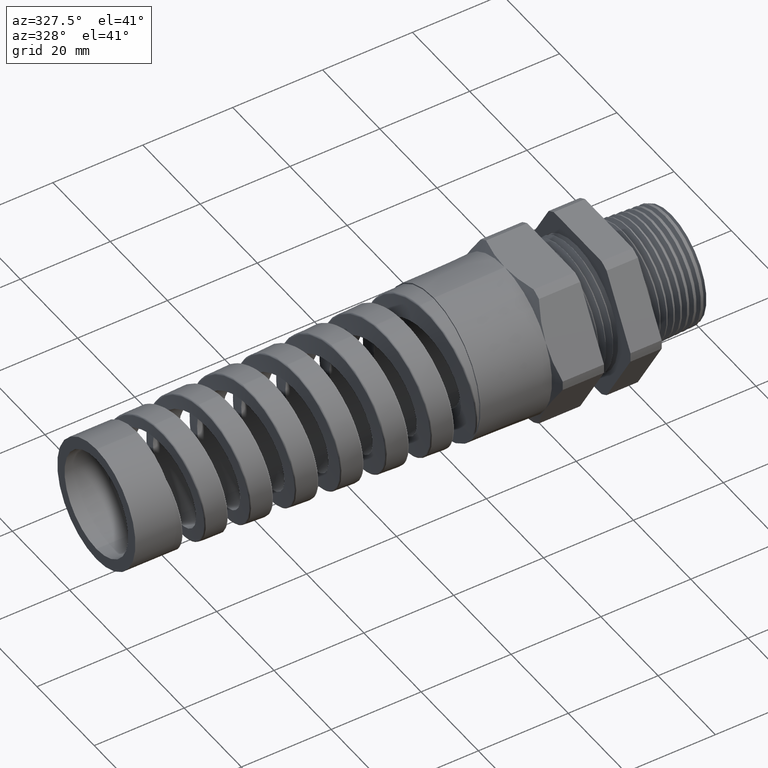
[diagram: clean part render]
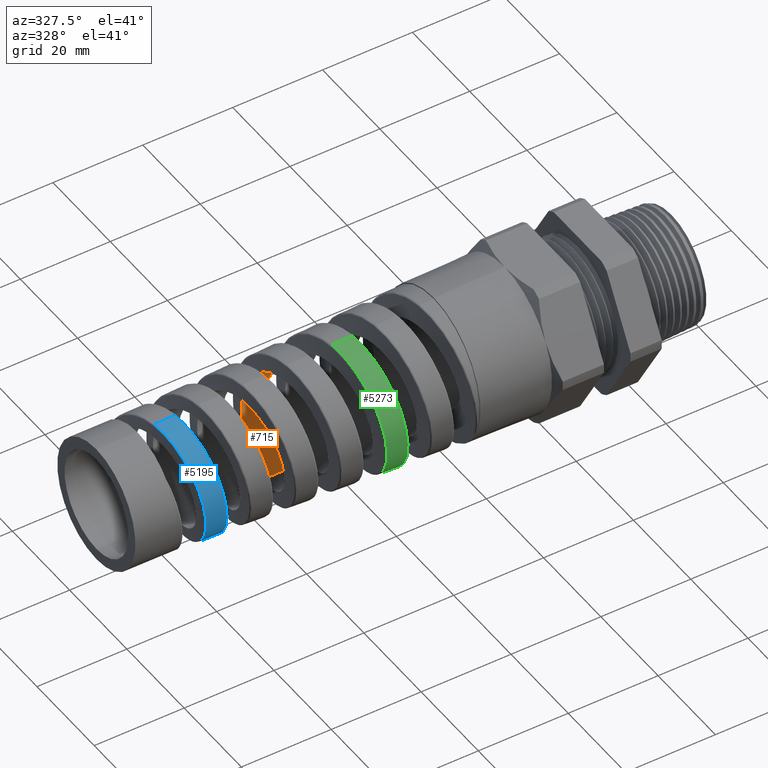
[diagram: same view with three faces highlighted in distinct colors, each labeled with its STEP entity id]
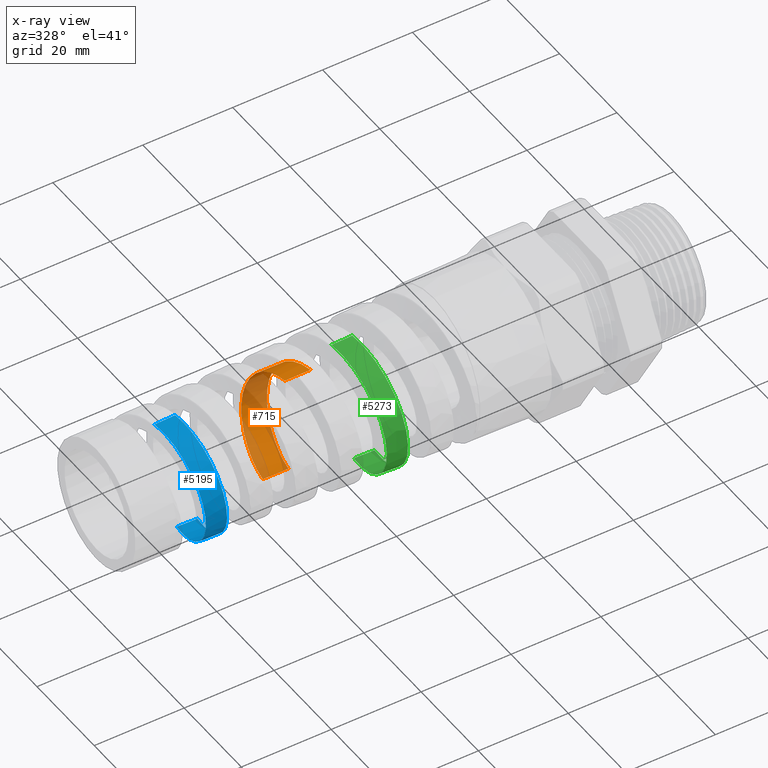
[diagram: x-ray of the same camera — body ghosted, the three highlighted faces saturated]
A machine part, auxiliary view with three faces highlighted in distinct colors.
The next image is the same camera in x-ray (body ghosted, the three faces saturated) — at least one of them is partly hidden behind the body in this view.
Their STEP definitions:

[orange] entity #715 — the highlighted cylindrical surface (partial cylindrical patch) has radius 11.1145 mm, axis along (1, 0, 0).
#715 = ADVANCED_FACE ( 'NONE', ( #6535 ), #6563, .F. ) ;
#716 = EDGE_LOOP ( 'NONE', ( #717, #718, #720, #721 ) ) ;
#717 = ORIENTED_EDGE ( 'NONE', *, *, #772, .F. ) ;
#718 = ORIENTED_EDGE ( 'NONE', *, *, #719, .F. ) ;
#719 = EDGE_CURVE ( 'NONE', #811, #769, #6558, .T. ) ;
#720 = ORIENTED_EDGE ( 'NONE', *, *, #749, .T. ) ;
#721 = ORIENTED_EDGE ( 'NONE', *, *, #877, .F. ) ;
#749 = EDGE_CURVE ( 'NONE', #811, #753, #6717, .T. ) ;
#753 = VERTEX_POINT ( 'NONE', #6783 ) ;
#769 = VERTEX_POINT ( 'NONE', #6931 ) ;
#772 = EDGE_CURVE ( 'NONE', #769, #773, #6951, .T. ) ;
#773 = VERTEX_POINT ( 'NONE', #6947 ) ;
#811 = VERTEX_POINT ( 'NONE', #7150 ) ;
#877 = EDGE_CURVE ( 'NONE', #773, #753, #7630, .T. ) ;
#4959 = CARTESIAN_POINT ( 'NONE',  ( -2.694207136923370400, 0.4235999524515407000, 0.1133797003699218400 ) ) ;
#4960 = CARTESIAN_POINT ( 'NONE',  ( -2.702293926259731200, 0.4340670682649363500, 0.05718786507416742000 ) ) ;
#4963 = CARTESIAN_POINT ( 'NONE',  ( -2.700268127192776200, 0.4319569697254873600, 0.07136846619438293200 ) ) ;
#4970 = CARTESIAN_POINT ( 'NONE',  ( -2.724590798246794100, 0.4263794723513160100, -0.09941146988694135600 ) ) ;
#4971 = CARTESIAN_POINT ( 'NONE',  ( -2.708414971551135400, 0.4375879453348383000, 0.01406099765065123800 ) ) ;
#4972 = CARTESIAN_POINT ( 'NONE',  ( -2.718503366763362900, 0.4347709354047538700, -0.05721330619194455600 ) ) ;
#4974 = CARTESIAN_POINT ( 'NONE',  ( -2.706377234980442500, 0.4368918084916906300, 0.02846435203404126100 ) ) ;
#4976 = CARTESIAN_POINT ( 'NONE',  ( -2.726641355214158400, 0.4228513751711214800, -0.1134884380974885300 ) ) ;
#4977 = CARTESIAN_POINT ( 'NONE',  ( -2.714486937747496900, 0.4375644626025231300, -0.02884054132668770200 ) ) ;
#4978 = CARTESIAN_POINT ( 'NONE',  ( -2.730707528244680700, 0.4144945512280998600, -0.1409864463986948400 ) ) ;
#4997 = CARTESIAN_POINT ( 'NONE',  ( -2.755013650339892500, 0.3295277901403026500, -0.2893107039342967000 ) ) ;
#4998 = CARTESIAN_POINT ( 'NONE',  ( -2.742806860143945700, 0.3798388181248294500, -0.2191653533131112100 ) ) ;
#4999 = CARTESIAN_POINT ( 'NONE',  ( -2.738783150130913200, 0.3932809352919259300, -0.1939582408115517500 ) ) ;
#5001 = CARTESIAN_POINT ( 'NONE',  ( -2.732728302834769500, 0.4096666948386530300, -0.1544439544585969000 ) ) ;
#5004 = CARTESIAN_POINT ( 'NONE',  ( -2.750981237259588800, 0.3477293092156286100, -0.2671990032910863100 ) ) ;
#5014 = CARTESIAN_POINT ( 'NONE',  ( -2.761066968281598500, 0.2992831606397056100, -0.3195453244018283700 ) ) ;
#5022 = CARTESIAN_POINT ( 'NONE',  ( -2.769199544618735000, 0.2548525690615832700, -0.3559954826699987000 ) ) ;
#5023 = CARTESIAN_POINT ( 'NONE',  ( -2.775294173260272500, 0.2190207856655407300, -0.3799093411971460300 ) ) ;
#5024 = CARTESIAN_POINT ( 'NONE',  ( -2.767148183466754400, 0.2665143015144206800, -0.3473506724377902200 ) ) ;
#5025 = CARTESIAN_POINT ( 'NONE',  ( -2.807672832263100800, -2.027543432797695300E-016, -0.4375801833083611300 ) ) ;
#5026 = CARTESIAN_POINT ( 'NONE',  ( -2.803607762248410100, 0.02872124390136456000, -0.4375801833083611300 ) ) ;
#5027 = CARTESIAN_POINT ( 'NONE',  ( -2.799590814173775800, 0.05709967144920580900, -0.4347788572350017600 ) ) ;
#5028 = CARTESIAN_POINT ( 'NONE',  ( -2.791505033385881500, 0.1131604506088350500, -0.4236599339047613700 ) ) ;
#5029 = CARTESIAN_POINT ( 'NONE',  ( -2.787400085737480500, 0.1410579036184720100, -0.4152056754303908300 ) ) ;
#5030 = CARTESIAN_POINT ( 'NONE',  ( -2.779310177049127500, 0.1938617894715340400, -0.3933328001397032900 ) ) ;
#5031 = CARTESIAN_POINT ( 'NONE',  ( -2.763086590672625900, 0.2887004445277280800, -0.3291419388108978700 ) ) ;
#6535 = FACE_OUTER_BOUND ( 'NONE', #716, .T. ) ;
#6553 = CARTESIAN_POINT ( 'NONE',  ( -3.015843176053047500, 0.1133966362567212800, -0.4228738681286329200 ) ) ;
#6554 = CARTESIAN_POINT ( 'NONE',  ( -3.017872050994979000, 0.09938861333829138200, -0.4263875346560003800 ) ) ;
#6555 = CARTESIAN_POINT ( 'NONE',  ( -3.023958560072804500, 0.05694993846337197800, -0.4348162355775174200 ) ) ;
#6556 = CARTESIAN_POINT ( 'NONE',  ( -3.027954972463774200, 0.02853094462942227000, -0.4375801833083596800 ) ) ;
#6557 = CARTESIAN_POINT ( 'NONE',  ( -3.031966667347496500, 1.715942021020365400E-014, -0.4375801833083611300 ) ) ;
#6558 = B_SPLINE_CURVE_WITH_KNOTS ( 'NONE', 3,
 ( #6557, #6556, #6555, #6554, #6553, #6636, #6635, #6634, #6633, #6632, #6631, #6630, #6629, #6628, #6627, #6626, #6625, #6624, #6623, #6622, #6621, #6620, #6619, #6618, #6617, #6616, #6615, #6614, #6613, #6612, #6611, #6610, #6609, #6608, #6607, #6606, #6605, #6604, #6603, #6602, #6601, #6600, #6599, #6598, #6597, #6596 ),
 .UNSPECIFIED., .F., .F.,
 ( 4, 2, 2, 2, 2, 2, 2, 2, 2, 2, 2, 2, 2, 2, 2, 2, 2, 2, 2, 2, 2, 2, 4 ),
 ( 0.1992993950403253400, 0.2014912655880456400, 0.2025872008619057900, 0.2036831361357659400, 0.2047790714096260900, 0.2058750066834862400, 0.2080668772312065400, 0.2091628125050666900, 0.2102587477789268400, 0.2124506183266471300, 0.2135465536005072800, 0.2146424888743674300, 0.2168343594220877000, 0.2190262299698080000, 0.2201221652436681500, 0.2212181005175283000, 0.2234099710652485700, 0.2256018416129688700, 0.2277937121606891700, 0.2288896474345492900, 0.2299855827084094400, 0.2321774532561297100, 0.2343693238038500000 ),
 .UNSPECIFIED. ) ;
#6559 = DIRECTION ( 'NONE',  ( 0.0000000000000000000, 0.0000000000000000000, -1.000000000000000000 ) ) ;
#6560 = DIRECTION ( 'NONE',  ( 1.000000000000000000, 0.0000000000000000000, 0.0000000000000000000 ) ) ;
#6561 = CARTESIAN_POINT ( 'NONE',  ( 0.4924815508901369000, 0.0000000000000000000, 0.0000000000000000000 ) ) ;
#6562 = AXIS2_PLACEMENT_3D ( 'NONE', #6561, #6560, #6559 ) ;
#6563 = CYLINDRICAL_SURFACE ( 'NONE', #6562, 0.4375801833083611800 ) ;
#6596 = CARTESIAN_POINT ( 'NONE',  ( -2.838629872620516800, 1.205427927204356100E-014, 0.4375801833083612400 ) ) ;
#6597 = CARTESIAN_POINT ( 'NONE',  ( -2.842642250510630100, 0.02852298603908091900, 0.4375801833083604600 ) ) ;
#6598 = CARTESIAN_POINT ( 'NONE',  ( -2.846640289079458400, 0.05695423212831529600, 0.4348179163516578400 ) ) ;
#6599 = CARTESIAN_POINT ( 'NONE',  ( -2.854761522529525300, 0.1136044562112085200, 0.4235616040987179600 ) ) ;
#6600 = CARTESIAN_POINT ( 'NONE',  ( -2.858774380069958500, 0.1410319844472994700, 0.4152099375701274700 ) ) ;
#6601 = CARTESIAN_POINT ( 'NONE',  ( -2.864790622778134600, 0.1805467573304314900, 0.3988514877233551600 ) ) ;
#6602 = CARTESIAN_POINT ( 'NONE',  ( -2.866797589223717900, 0.1934637857953772600, 0.3927518811073081900 ) ) ;
#6603 = CARTESIAN_POINT ( 'NONE',  ( -2.870832863856898100, 0.2187764531646800000, 0.3792349404634168800 ) ) ;
#6604 = CARTESIAN_POINT ( 'NONE',  ( -2.872871432872011500, 0.2312289193635532500, 0.3717740841177874500 ) ) ;
#6605 = CARTESIAN_POINT ( 'NONE',  ( -2.878931314804519500, 0.2670579029315942600, 0.3478246068004198800 ) ) ;
#6606 = CARTESIAN_POINT ( 'NONE',  ( -2.882923764402981700, 0.2890962293386452100, 0.3297215685150894900 ) ) ;
#6607 = CARTESIAN_POINT ( 'NONE',  ( -2.890963121431791500, 0.3295212534178385600, 0.2893245342306974800 ) ) ;
#6608 = CARTESIAN_POINT ( 'NONE',  ( -2.895042283860542700, 0.3480174992886735900, 0.2667907034838895000 ) ) ;
#6609 = CARTESIAN_POINT ( 'NONE',  ( -2.903081218940116900, 0.3797670162980679700, 0.2192497950024895300 ) ) ;
#6610 = CARTESIAN_POINT ( 'NONE',  ( -2.907073897790847900, 0.3932221499266280700, 0.1941064754677404900 ) ) ;
#6611 = CARTESIAN_POINT ( 'NONE',  ( -2.913132513054502000, 0.4097178114621394300, 0.1543174434134580200 ) ) ;
#6612 = CARTESIAN_POINT ( 'NONE',  ( -2.915171504851613400, 0.4146090103925401700, 0.1406479877364261700 ) ) ;
#6613 = CARTESIAN_POINT ( 'NONE',  ( -2.919208438948187800, 0.4229357720939462300, 0.1131716423680638700 ) ) ;
#6614 = CARTESIAN_POINT ( 'NONE',  ( -2.921215150750770200, 0.4264005254186205000, 0.09930896327986583900 ) ) ;
#6615 = CARTESIAN_POINT ( 'NONE',  ( -2.927230004578382800, 0.4347406155909507900, 0.05735904238264411700 ) ) ;
#6616 = CARTESIAN_POINT ( 'NONE',  ( -2.931237944858301200, 0.4375815924882116000, 0.02887819405500304700 ) ) ;
#6617 = CARTESIAN_POINT ( 'NONE',  ( -2.939366664906930100, 0.4375787730873221300, -0.02892088380031939200 ) ) ;
#6618 = CARTESIAN_POINT ( 'NONE',  ( -2.943363990872129400, 0.4347417657543156100, -0.05735294194860474100 ) ) ;
#6619 = CARTESIAN_POINT ( 'NONE',  ( -2.949380437958645500, 0.4264002261725200500, -0.09931062606032052500 ) ) ;
#6620 = CARTESIAN_POINT ( 'NONE',  ( -2.951389108545927200, 0.4229337946839165100, -0.1131806586185473300 ) ) ;
#6621 = CARTESIAN_POINT ( 'NONE',  ( -2.955431540759328300, 0.4145982129636686100, -0.1406811216133774500 ) ) ;
#6622 = CARTESIAN_POINT ( 'NONE',  ( -2.957470883976588200, 0.4097062155992822200, -0.1543470891328777800 ) ) ;
#6623 = CARTESIAN_POINT ( 'NONE',  ( -2.963522778349685800, 0.3932228382332436700, -0.1941014608836493800 ) ) ;
#6624 = CARTESIAN_POINT ( 'NONE',  ( -2.967512084743360900, 0.3797721067410897400, -0.2192430539787212600 ) ) ;
#6625 = CARTESIAN_POINT ( 'NONE',  ( -2.973546048186181100, 0.3559460941329809500, -0.2549181890994243700 ) ) ;
#6626 = CARTESIAN_POINT ( 'NONE',  ( -2.975571221467449200, 0.3473659458395853000, -0.2664989872068680400 ) ) ;
#6627 = CARTESIAN_POINT ( 'NONE',  ( -2.979632652103455700, 0.3290460746303322500, -0.2888139388632166600 ) ) ;
#6628 = CARTESIAN_POINT ( 'NONE',  ( -2.981647002029892000, 0.3194071998807872000, -0.2994317916665636400 ) ) ;
#6629 = CARTESIAN_POINT ( 'NONE',  ( -2.987671230323330400, 0.2891023138068560800, -0.3297150746695077800 ) ) ;
#6630 = CARTESIAN_POINT ( 'NONE',  ( -2.991662762929491800, 0.2670608077286750200, -0.3478246057484527000 ) ) ;
#6631 = CARTESIAN_POINT ( 'NONE',  ( -2.997730521076803300, 0.2311968391239804000, -0.3717945562328803800 ) ) ;
#6632 = CARTESIAN_POINT ( 'NONE',  ( -2.999769113306247200, 0.2187510069458586900, -0.3792491747497717100 ) ) ;
#6633 = CARTESIAN_POINT ( 'NONE',  ( -3.003802127521899100, 0.1934585260498454500, -0.3927540429923431200 ) ) ;
#6634 = CARTESIAN_POINT ( 'NONE',  ( -3.005807450239790200, 0.1805473451081527900, -0.3988511742663628500 ) ) ;
#6635 = CARTESIAN_POINT ( 'NONE',  ( -3.009816030337129500, 0.1542066629581228800, -0.4097559128781166900 ) ) ;
#6636 = CARTESIAN_POINT ( 'NONE',  ( -3.011819235601294900, 0.1407771479000699500, -0.4145635054964840700 ) ) ;
#6687 = CARTESIAN_POINT ( 'NONE',  ( -2.669910389161953100, 0.3474744645753283800, 0.2663505491012423400 ) ) ;
#6688 = CARTESIAN_POINT ( 'NONE',  ( -2.665860037810031000, 0.3293333747774439000, 0.2884798897603505500 ) ) ;
#6690 = CARTESIAN_POINT ( 'NONE',  ( -2.663817642048237600, 0.3196387218226011700, 0.2991912217825549700 ) ) ;
#6714 = DIRECTION ( 'NONE',  ( 1.000000000000000000, 0.0000000000000000000, 0.0000000000000000000 ) ) ;
#6715 = VECTOR ( 'NONE', #6714, 39.37007874015748100 ) ;
#6716 = CARTESIAN_POINT ( 'NONE',  ( 0.4924815508901369000, 0.0000000000000000000, -0.4375801833083611800 ) ) ;
#6717 = LINE ( 'NONE', #6716, #6715 ) ;
#6783 = CARTESIAN_POINT ( 'NONE',  ( -2.807672832263100800, -2.027543432797695300E-016, -0.4375801833083611300 ) ) ;
#6931 = CARTESIAN_POINT ( 'NONE',  ( -2.838629872620516800, 1.205427927204356100E-014, 0.4375801833083612400 ) ) ;
#6947 = CARTESIAN_POINT ( 'NONE',  ( -2.613139241122711500, -6.848721577553856900E-014, 0.4375801833083611800 ) ) ;
#6948 = DIRECTION ( 'NONE',  ( 1.000000000000000000, 0.0000000000000000000, 0.0000000000000000000 ) ) ;
#6949 = VECTOR ( 'NONE', #6948, 39.37007874015748100 ) ;
#6950 = CARTESIAN_POINT ( 'NONE',  ( 0.4924815508901369000, 5.358811708588965500E-017, 0.4375801833083611800 ) ) ;
#6951 = LINE ( 'NONE', #6950, #6949 ) ;
#6979 = CARTESIAN_POINT ( 'NONE',  ( -2.677978044180871800, 0.3791391765474385100, 0.2189413737954246400 ) ) ;
#6980 = CARTESIAN_POINT ( 'NONE',  ( -2.673943279708150800, 0.3644553410325543400, 0.2434280205106472100 ) ) ;
#7150 = CARTESIAN_POINT ( 'NONE',  ( -3.031966667347496500, 1.715942021020365400E-014, -0.4375801833083611300 ) ) ;
#7255 = CARTESIAN_POINT ( 'NONE',  ( -2.684082892779004600, 0.3988543217807282200, 0.1805504071715829900 ) ) ;
#7256 = CARTESIAN_POINT ( 'NONE',  ( -2.682033483891566500, 0.3926536803663501200, 0.1936618900229409300 ) ) ;
#7257 = CARTESIAN_POINT ( 'NONE',  ( -2.690187873850766300, 0.4153449995690597400, 0.1406846082284674000 ) ) ;
#7616 = CARTESIAN_POINT ( 'NONE',  ( -2.657697437803621100, 0.2890560466967878100, 0.3297795477527140100 ) ) ;
#7617 = CARTESIAN_POINT ( 'NONE',  ( -2.653678691738003100, 0.2669732231774404300, 0.3478730654776512900 ) ) ;
#7618 = CARTESIAN_POINT ( 'NONE',  ( -2.647622242086510500, 0.2314005243280038100, 0.3716634268441025800 ) ) ;
#7619 = CARTESIAN_POINT ( 'NONE',  ( -2.645598931043413100, 0.2191319623625467000, 0.3790312980188004200 ) ) ;
#7620 = CARTESIAN_POINT ( 'NONE',  ( -2.641524754582273500, 0.1937529582512558200, 0.3926109180544580200 ) ) ;
#7621 = CARTESIAN_POINT ( 'NONE',  ( -2.639476641480146000, 0.1806531993436089900, 0.3988057426852711400 ) ) ;
#7622 = CARTESIAN_POINT ( 'NONE',  ( -2.633396789773850200, 0.1409503058000654000, 0.4152471025180803900 ) ) ;
#7623 = CARTESIAN_POINT ( 'NONE',  ( -2.629383356034303200, 0.1136716093560228300, 0.4235266664750939600 ) ) ;
#7624 = CARTESIAN_POINT ( 'NONE',  ( -2.623305242008180800, 0.07155678931911256500, 0.4319270268433637600 ) ) ;
#7625 = CARTESIAN_POINT ( 'NONE',  ( -2.621259364263914800, 0.05724498533231957300, 0.4340586976099888900 ) ) ;
#7626 = CARTESIAN_POINT ( 'NONE',  ( -2.617181603483568000, 0.02857241836257029200, 0.4368839184789152800 ) ) ;
#7627 = CARTESIAN_POINT ( 'NONE',  ( -2.615158021695545500, 0.01426935030649848100, 0.4375801833083632900 ) ) ;
#7628 = CARTESIAN_POINT ( 'NONE',  ( -2.613139241122711500, -6.848721577553856900E-014, 0.4375801833083611800 ) ) ;
#7630 = B_SPLINE_CURVE_WITH_KNOTS ( 'NONE', 3,
 ( #7628, #7627, #7626, #7625, #7624, #7623, #7622, #7621, #7620, #7619, #7618, #7617, #7616, #6690, #6688, #6687, #6980, #6979, #7256, #7255, #7257, #4959, #4963, #4960, #4974, #4971, #4977, #4972, #4970, #4976, #4978, #5001, #4999, #4998, #5004, #4997, #5014, #5031, #5024, #5022, #5023, #5030, #5029, #5028, #5027, #5026, #5025 ),
 .UNSPECIFIED., .F., .F.,
 ( 4, 2, 2, 2, 2, 2, 2, 2, 1, 2, 2, 2, 2, 2, 2, 2, 2, 2, 2, 2, 2, 2, 2, 4 ),
 ( 0.2461000974137509700, 0.2471969352347335400, 0.2482937730557161200, 0.2504874486976812500, 0.2515842865186638200, 0.2526811243396464000, 0.2548747999816115600, 0.2559716378025941300, 0.2570684756235767100, 0.2581653134445592900, 0.2592621512655418600, 0.2614558269075070200, 0.2625526647284895900, 0.2636495025494721700, 0.2658431781914373200, 0.2669400160124199000, 0.2680368538334024200, 0.2702305294753675800, 0.2724242051173327300, 0.2735210429383153100, 0.2746178807592978800, 0.2768115564012629800, 0.2790052320432281400, 0.2811989076851932900 ),
 .UNSPECIFIED. ) ;

[blue] entity #5195 — the highlighted conical surface has half-angle 2.001 deg.
#916 = EDGE_CURVE ( 'NONE', #932, #917, #7805, .T. ) ;
#917 = VERTEX_POINT ( 'NONE', #7801 ) ;
#932 = VERTEX_POINT ( 'NONE', #7888 ) ;
#3049 = CARTESIAN_POINT ( 'NONE',  ( -3.786872882697699600, -1.141811419228306900E-016, -0.5495940488530302000 ) ) ;
#3050 = CARTESIAN_POINT ( 'NONE',  ( -3.605571630806739600, 4.519610113847984200E-013, -0.5559271605901418000 ) ) ;
#3064 = DIRECTION ( 'NONE',  ( 0.9993904554178625300, 0.0000000000000000000, -0.03491013634572578300 ) ) ;
#3065 = VECTOR ( 'NONE', #3064, 39.37007874015748900 ) ;
#3066 = CARTESIAN_POINT ( 'NONE',  ( -0.9125000000000002000, 0.0000000000000000000, -0.6499999999999998000 ) ) ;
#3067 = LINE ( 'NONE', #3066, #3065 ) ;
#5168 = ORIENTED_EDGE ( 'NONE', *, *, #5172, .T. ) ;
#5172 = EDGE_CURVE ( 'NONE', #6263, #917, #8710, .T. ) ;
#5179 = EDGE_LOOP ( 'NONE', ( #5184, #5181, #5185, #5168 ) ) ;
#5181 = ORIENTED_EDGE ( 'NONE', *, *, #5186, .T. ) ;
#5184 = ORIENTED_EDGE ( 'NONE', *, *, #916, .F. ) ;
#5185 = ORIENTED_EDGE ( 'NONE', *, *, #6269, .T. ) ;
#5186 = EDGE_CURVE ( 'NONE', #932, #6265, #8907, .T. ) ;
#5195 = ADVANCED_FACE ( 'NONE', ( #9014 ), #9016, .T. ) ;
#6263 = VERTEX_POINT ( 'NONE', #3050 ) ;
#6265 = VERTEX_POINT ( 'NONE', #3049 ) ;
#6269 = EDGE_CURVE ( 'NONE', #6265, #6263, #3067, .T. ) ;
#7801 = CARTESIAN_POINT ( 'NONE',  ( -3.799519301495378100, -8.118269636983785900E-016, 0.5491522913776423200 ) ) ;
#7802 = DIRECTION ( 'NONE',  ( 0.9993904554178625300, 4.275258673359075800E-018, 0.03491013634572578300 ) ) ;
#7803 = VECTOR ( 'NONE', #7802, 39.37007874015748900 ) ;
#7804 = CARTESIAN_POINT ( 'NONE',  ( -0.9125000000000002000, 7.960204194457793000E-017, 0.6499999999999998000 ) ) ;
#7805 = LINE ( 'NONE', #7804, #7803 ) ;
#7888 = CARTESIAN_POINT ( 'NONE',  ( -3.980791311833019400, 1.997015748266174300E-015, 0.5428202010897629200 ) ) ;
#8694 = CARTESIAN_POINT ( 'NONE',  ( -3.669971854096326400, -0.4793803834418495800, -0.2794018710394471900 ) ) ;
#8695 = CARTESIAN_POINT ( 'NONE',  ( -3.663913403103144200, -0.4491893515164890300, -0.3245769527424583500 ) ) ;
#8696 = CARTESIAN_POINT ( 'NONE',  ( -3.661873519543022300, -0.4382693845161888500, -0.3392954397362430400 ) ) ;
#8697 = CARTESIAN_POINT ( 'NONE',  ( -3.657830655700140500, -0.4152344870242042400, -0.3673394254435103400 ) ) ;
#8698 = CARTESIAN_POINT ( 'NONE',  ( -3.655822333457102500, -0.4031016294146083600, -0.3807095251005088700 ) ) ;
#8699 = CARTESIAN_POINT ( 'NONE',  ( -3.649805916311775100, -0.3649018369559813300, -0.4189069497396085100 ) ) ;
#8700 = CARTESIAN_POINT ( 'NONE',  ( -3.645806019760774200, -0.3370509701565616000, -0.4418397157463945800 ) ) ;
#8701 = CARTESIAN_POINT ( 'NONE',  ( -3.637682558776632800, -0.2764059941936850000, -0.4824315542111944900 ) ) ;
#8702 = CARTESIAN_POINT ( 'NONE',  ( -3.633682184124247700, -0.2445214030867526600, -0.4994696106308042500 ) ) ;
#8703 = CARTESIAN_POINT ( 'NONE',  ( -3.627675680033028500, -0.1946579158918594600, -0.5202206371833796300 ) ) ;
#8704 = CARTESIAN_POINT ( 'NONE',  ( -3.625671362447277600, -0.1776838971039295100, -0.5263381244793443600 ) ) ;
#8705 = CARTESIAN_POINT ( 'NONE',  ( -3.621639809514614500, -0.1430178424718741300, -0.5369410465746103900 ) ) ;
#8706 = CARTESIAN_POINT ( 'NONE',  ( -3.619603729523129100, -0.1252454662259653900, -0.5414356616207678400 ) ) ;
#8707 = CARTESIAN_POINT ( 'NONE',  ( -3.613559062555029100, -0.07192019847203130800, -0.5521660245366073500 ) ) ;
#8708 = CARTESIAN_POINT ( 'NONE',  ( -3.609579926407451700, -0.03609244423457845500, -0.5557871450985517600 ) ) ;
#8709 = CARTESIAN_POINT ( 'NONE',  ( -3.605571630806739600, 4.519610113847984200E-013, -0.5559271605901418000 ) ) ;
#8710 = B_SPLINE_CURVE_WITH_KNOTS ( 'NONE', 3,
 ( #8709, #8708, #8707, #8706, #8705, #8704, #8703, #8702, #8701, #8700, #8699, #8698, #8697, #8696, #8695, #8694, #8771, #8770, #8769, #8768, #8767, #8766, #8765, #8764, #8763, #8762, #8761, #8760, #8759, #8758, #8757, #8756, #8755, #8754, #8753, #8752, #8751, #8750, #8749, #8748, #8747, #8746, #8745, #8744, #8743, #8742, #8741, #8740, #8739, #8738 ),
 .UNSPECIFIED., .F., .F.,
 ( 4, 2, 2, 2, 2, 2, 2, 2, 2, 2, 2, 2, 2, 2, 2, 2, 2, 2, 2, 2, 2, 2, 2, 2, 4 ),
 ( 0.5092156289720933800, 0.5119943788012010200, 0.5133837537157548400, 0.5147731286303087700, 0.5175518784594164100, 0.5203306282885240600, 0.5217200032030778800, 0.5231093781176317000, 0.5258881279467394500, 0.5272775028612932700, 0.5286668777758470900, 0.5314456276049547300, 0.5328350025195086600, 0.5342243774340624800, 0.5356137523486163000, 0.5370031272631701200, 0.5397818770922777600, 0.5411712520068316900, 0.5425606269213855100, 0.5453393767504931500, 0.5467287516650469700, 0.5481181265796008000, 0.5508968764087085500, 0.5522862513232623700, 0.5536756262378161900 ),
 .UNSPECIFIED. ) ;
#8738 = CARTESIAN_POINT ( 'NONE',  ( -3.799519301495378100, -8.118269636983785900E-016, 0.5491522913776423200 ) ) ;
#8739 = CARTESIAN_POINT ( 'NONE',  ( -3.797495774032865400, -0.01800062233100970700, 0.5492229760827369600 ) ) ;
#8740 = CARTESIAN_POINT ( 'NONE',  ( -3.795474891300162100, -0.03599014910319043400, 0.5484106196471366700 ) ) ;
#8741 = CARTESIAN_POINT ( 'NONE',  ( -3.791417504143758800, -0.07194444350614219400, 0.5450038704702097100 ) ) ;
#8742 = CARTESIAN_POINT ( 'NONE',  ( -3.789374583629071300, -0.08996547882397493100, 0.5423982619586991100 ) ) ;
#8743 = CARTESIAN_POINT ( 'NONE',  ( -3.783232900281598500, -0.1436147239963198300, 0.5318802250182467200 ) ) ;
#8744 = CARTESIAN_POINT ( 'NONE',  ( -3.779201036822446900, -0.1781342489671358900, 0.5214538457432784700 ) ) ;
#8745 = CARTESIAN_POINT ( 'NONE',  ( -3.773136978347566600, -0.2280977690793263300, 0.5008763111856561200 ) ) ;
#8746 = CARTESIAN_POINT ( 'NONE',  ( -3.771112640550769800, -0.2444474168795613100, 0.4931881547453710300 ) ) ;
#8747 = CARTESIAN_POINT ( 'NONE',  ( -3.767036746126255900, -0.2765191660589556600, 0.4761123001338947200 ) ) ;
#8748 = CARTESIAN_POINT ( 'NONE',  ( -3.764985634141041300, -0.2922306193360411100, 0.4667153204196851600 ) ) ;
#8749 = CARTESIAN_POINT ( 'NONE',  ( -3.758896838615569900, -0.3373814155049186800, 0.4365911897165963300 ) ) ;
#8750 = CARTESIAN_POINT ( 'NONE',  ( -3.754878526201671300, -0.3652209857785725400, 0.4137680784061713600 ) ) ;
#8751 = CARTESIAN_POINT ( 'NONE',  ( -3.748802404855443400, -0.4035906403477043700, 0.3754444160477639100 ) ) ;
#8752 = CARTESIAN_POINT ( 'NONE',  ( -3.746758001551005400, -0.4158694043420855200, 0.3619107340182743900 ) ) ;
#8753 = CARTESIAN_POINT ( 'NONE',  ( -3.742682753428204600, -0.4389445904963378300, 0.3337832839474074700 ) ) ;
#8754 = CARTESIAN_POINT ( 'NONE',  ( -3.740659691184232900, -0.4497045327519607600, 0.3192509117057760200 ) ) ;
#8755 = CARTESIAN_POINT ( 'NONE',  ( -3.734604476089852000, -0.4797158702159688400, 0.2742904422404129900 ) ) ;
#8756 = CARTESIAN_POINT ( 'NONE',  ( -3.730588566695434600, -0.4967203111524791700, 0.2425116192425427800 ) ) ;
#8757 = CARTESIAN_POINT ( 'NONE',  ( -3.724481928517761300, -0.5175854847015826100, 0.1920684818016409100 ) ) ;
#8758 = CARTESIAN_POINT ( 'NONE',  ( -3.722441494279376400, -0.5237191793549043100, 0.1748641973419241000 ) ) ;
#8759 = CARTESIAN_POINT ( 'NONE',  ( -3.718398233981400600, -0.5341740653747816300, 0.1402613125450841200 ) ) ;
#8760 = CARTESIAN_POINT ( 'NONE',  ( -3.716385490346410900, -0.5385303372224817800, 0.1227809344484401300 ) ) ;
#8761 = CARTESIAN_POINT ( 'NONE',  ( -3.712359156921411200, -0.5455223039342230700, 0.08746888711226094600 ) ) ;
#8762 = CARTESIAN_POINT ( 'NONE',  ( -3.710345704651037300, -0.5481580120964046900, 0.06963720481828149200 ) ) ;
#8763 = CARTESIAN_POINT ( 'NONE',  ( -3.706300995977739100, -0.5516814238560942000, 0.03361889231956913200 ) ) ;
#8764 = CARTESIAN_POINT ( 'NONE',  ( -3.704258038432754100, -0.5525658348631715700, 0.01533011492151726200 ) ) ;
#8765 = CARTESIAN_POINT ( 'NONE',  ( -3.698170985035675000, -0.5524988496559266600, -0.03916554026880819700 ) ) ;
#8766 = CARTESIAN_POINT ( 'NONE',  ( -3.694166430158130500, -0.5489056506897320700, -0.07501050940328632400 ) ) ;
#8767 = CARTESIAN_POINT ( 'NONE',  ( -3.688125696065655200, -0.5383161826329574400, -0.1280538910190519300 ) ) ;
#8768 = CARTESIAN_POINT ( 'NONE',  ( -3.686107137142490500, -0.5339136222234286400, -0.1456135668140447800 ) ) ;
#8769 = CARTESIAN_POINT ( 'NONE',  ( -3.682040792130586200, -0.5233078629184746400, -0.1804801923007174600 ) ) ;
#8770 = CARTESIAN_POINT ( 'NONE',  ( -3.680011717523920600, -0.5171485929127980200, -0.1976211281839763700 ) ) ;
#8771 = CARTESIAN_POINT ( 'NONE',  ( -3.673968831603194700, -0.4963624576446458700, -0.2476554383716091100 ) ) ;
#8900 = CARTESIAN_POINT ( 'NONE',  ( -3.960481932032669400, -0.1760507857360792400, 0.5154642645314605500 ) ) ;
#8901 = CARTESIAN_POINT ( 'NONE',  ( -3.964503588674762400, -0.1419703965117982100, 0.5257390496124096900 ) ) ;
#8902 = CARTESIAN_POINT ( 'NONE',  ( -3.970612803849980400, -0.08919968969687898400, 0.5361013466390712700 ) ) ;
#8903 = CARTESIAN_POINT ( 'NONE',  ( -3.972669518840636000, -0.07126744572439613900, 0.5387054774016094600 ) ) ;
#8904 = CARTESIAN_POINT ( 'NONE',  ( -3.976741969909372500, -0.03560627766707390900, 0.5420888610473755300 ) ) ;
#8905 = CARTESIAN_POINT ( 'NONE',  ( -3.978767477901342000, -0.01779376829229431500, 0.5428908965002635600 ) ) ;
#8906 = CARTESIAN_POINT ( 'NONE',  ( -3.980791311833019400, 1.997015748266174300E-015, 0.5428202010897629200 ) ) ;
#8907 = B_SPLINE_CURVE_WITH_KNOTS ( 'NONE', 3,
 ( #8906, #8905, #8904, #8903, #8902, #8901, #8900, #8984, #8983, #8982, #8981, #8980, #8979, #8978, #8977, #8976, #8975, #8974, #8973, #8972, #8971, #8970, #8969, #8968, #8967, #8966, #8965, #8964, #8963, #8962, #8961, #8960, #8959, #8958, #8957, #8956, #8955, #8954, #8953, #8952, #8951, #8950, #8949, #8948, #8947, #8946, #8945, #8944, #8943, #8942, #8941 ),
 .UNSPECIFIED., .F., .F.,
 ( 4, 2, 2, 2, 2, 2, 2, 2, 2, 2, 2, 2, 2, 2, 2, 2, 2, 2, 2, 1, 2, 2, 2, 2, 2, 4 ),
 ( 0.03368930612852936300, 0.03506607772634189700, 0.03644284932415443200, 0.03919639251977950800, 0.04057316411759204900, 0.04194993571540459000, 0.04470347891102966600, 0.04608025050884220800, 0.04745702210665474200, 0.04883379370446729000, 0.05021056530227982500, 0.05296410849790490800, 0.05434088009571745600, 0.05571765169352999000, 0.05847119488915508000, 0.05984796648696762100, 0.06122473808478015600, 0.06397828128040525300, 0.06535505287821778700, 0.06673182447603032100, 0.06810859607384287000, 0.06948536767165540400, 0.07223891086728048700, 0.07361568246509303500, 0.07499245406290557000, 0.07774599725853065200 ),
 .UNSPECIFIED. ) ;
#8941 = CARTESIAN_POINT ( 'NONE',  ( -3.786872882697699600, -1.141811419228306900E-016, -0.5495940488530302000 ) ) ;
#8942 = CARTESIAN_POINT ( 'NONE',  ( -3.790891297818813400, -0.03578609686263639600, -0.5494536798721065800 ) ) ;
#8943 = CARTESIAN_POINT ( 'NONE',  ( -3.794872084610720000, -0.07119068837289169200, -0.5458518493446509200 ) ) ;
#8944 = CARTESIAN_POINT ( 'NONE',  ( -3.800895413826714800, -0.1237159790219933000, -0.5352838055043089800 ) ) ;
#8945 = CARTESIAN_POINT ( 'NONE',  ( -3.802919527625351600, -0.1411976105688521600, -0.5308719837663847800 ) ) ;
#8946 = CARTESIAN_POINT ( 'NONE',  ( -3.806966482112541100, -0.1756267571294749300, -0.5203478272334513000 ) ) ;
#8947 = CARTESIAN_POINT ( 'NONE',  ( -3.808975115006611100, -0.1924541322433617200, -0.5142805603601231500 ) ) ;
#8948 = CARTESIAN_POINT ( 'NONE',  ( -3.814987439352928200, -0.2418058736856581500, -0.4937358307454771100 ) ) ;
#8949 = CARTESIAN_POINT ( 'NONE',  ( -3.818978046077606200, -0.2732102971642888000, -0.4769371746519484000 ) ) ;
#8950 = CARTESIAN_POINT ( 'NONE',  ( -3.825045058189367400, -0.3180042280717196900, -0.4469739750869826700 ) ) ;
#8951 = CARTESIAN_POINT ( 'NONE',  ( -3.827078887184109000, -0.3325263917668682700, -0.4361855208096271900 ) ) ;
#8952 = CARTESIAN_POINT ( 'NONE',  ( -3.831105345421813400, -0.3601576570543919600, -0.4134777938017271100 ) ) ;
#8953 = CARTESIAN_POINT ( 'NONE',  ( -3.835112965209723800, -0.3865447583510514500, -0.3895324175292132500 ) ) ;
#8954 = CARTESIAN_POINT ( 'NONE',  ( -3.839122526546465200, -0.4104769010280643900, -0.3631511750255587100 ) ) ;
#8955 = CARTESIAN_POINT ( 'NONE',  ( -3.843151430119928800, -0.4331636324539329100, -0.3355371344925305300 ) ) ;
#8956 = CARTESIAN_POINT ( 'NONE',  ( -3.845185651231529900, -0.4439336473256772500, -0.3210375059496365900 ) ) ;
#8957 = CARTESIAN_POINT ( 'NONE',  ( -3.851267511311485100, -0.4739191017029759600, -0.2761890548907852700 ) ) ;
#8958 = CARTESIAN_POINT ( 'NONE',  ( -3.855264338855771900, -0.4907060503577163600, -0.2447652637349125000 ) ) ;
#8959 = CARTESIAN_POINT ( 'NONE',  ( -3.861294082127932900, -0.5112067970936511300, -0.1954169196254941000 ) ) ;
#8960 = CARTESIAN_POINT ( 'NONE',  ( -3.863309527370496700, -0.5172549418446912300, -0.1785960662658472600 ) ) ;
#8961 = CARTESIAN_POINT ( 'NONE',  ( -3.867370227525059900, -0.5277336659325611000, -0.1441917809084212200 ) ) ;
#8962 = CARTESIAN_POINT ( 'NONE',  ( -3.869407224024432600, -0.5321335770847712700, -0.1266731437057332700 ) ) ;
#8963 = CARTESIAN_POINT ( 'NONE',  ( -3.875459297181870000, -0.5426304012108657000, -0.07410315730257233100 ) ) ;
#8964 = CARTESIAN_POINT ( 'NONE',  ( -3.879458113540098300, -0.5461604132821190600, -0.03869293599655321300 ) ) ;
#8965 = CARTESIAN_POINT ( 'NONE',  ( -3.885521705587471800, -0.5462360913856217900, 0.01495595556890634400 ) ) ;
#8966 = CARTESIAN_POINT ( 'NONE',  ( -3.887565049284135400, -0.5453728342250258000, 0.03302837460327286100 ) ) ;
#8967 = CARTESIAN_POINT ( 'NONE',  ( -3.891627073850270100, -0.5418824415565243200, 0.06878134425072941800 ) ) ;
#8968 = CARTESIAN_POINT ( 'NONE',  ( -3.893644007144959400, -0.5392691519517887100, 0.08645084638749382700 ) ) ;
#8969 = CARTESIAN_POINT ( 'NONE',  ( -3.899683591028065200, -0.5288915622452551300, 0.1388507748420541900 ) ) ;
#8970 = CARTESIAN_POINT ( 'NONE',  ( -3.903695343623798700, -0.5186137311666460000, 0.1729783995810769100 ) ) ;
#8971 = CARTESIAN_POINT ( 'NONE',  ( -3.909811007275632000, -0.4979849117934533900, 0.2229057632882053000 ) ) ;
#8972 = CARTESIAN_POINT ( 'NONE',  ( -3.911848733830671300, -0.4902855381321262800, 0.2391922623399196900 ) ) ;
#8973 = CARTESIAN_POINT ( 'NONE',  ( -3.915892193323764000, -0.4734618848428277000, 0.2706892877772825700 ) ) ;
#8974 = CARTESIAN_POINT ( 'NONE',  ( -3.917905259409716100, -0.4643126704400761800, 0.2859611083085819600 ) ) ;
#8975 = CARTESIAN_POINT ( 'NONE',  ( -3.921934925298348900, -0.4445551664543762600, 0.3155587106480962100 ) ) ;
#8976 = CARTESIAN_POINT ( 'NONE',  ( -3.923951461292257900, -0.4339469054694220000, 0.3298845196426115100 ) ) ;
#8977 = CARTESIAN_POINT ( 'NONE',  ( -3.928008276196516900, -0.4112452706079329200, 0.3575704844489477300 ) ) ;
#8978 = CARTESIAN_POINT ( 'NONE',  ( -3.930059337507950400, -0.3990809827144722300, 0.3709945000604415500 ) ) ;
#8979 = CARTESIAN_POINT ( 'NONE',  ( -3.936161026514382000, -0.3610145005444121400, 0.4090283248784754600 ) ) ;
#8980 = CARTESIAN_POINT ( 'NONE',  ( -3.940178090934343100, -0.3334713512431550200, 0.4315840030497044600 ) ) ;
#8981 = CARTESIAN_POINT ( 'NONE',  ( -3.946245456314197800, -0.2889727403292747800, 0.4612787094970931500 ) ) ;
#8982 = CARTESIAN_POINT ( 'NONE',  ( -3.948275114508847500, -0.2736055205652694900, 0.4704822952996696200 ) ) ;
#8983 = CARTESIAN_POINT ( 'NONE',  ( -3.952369886083136200, -0.2417663556911350500, 0.4874494947759150400 ) ) ;
#8984 = CARTESIAN_POINT ( 'NONE',  ( -3.954404294086386600, -0.2255334775331539800, 0.4950839829729995500 ) ) ;
#9014 = FACE_OUTER_BOUND ( 'NONE', #5179, .T. ) ;
#9016 = CONICAL_SURFACE ( 'NONE', #9028, 0.6499999999999998000, 0.03491723117042443800 ) ;
#9025 = DIRECTION ( 'NONE',  ( 0.0000000000000000000, 0.0000000000000000000, -1.000000000000000000 ) ) ;
#9026 = DIRECTION ( 'NONE',  ( 1.000000000000000000, 0.0000000000000000000, 0.0000000000000000000 ) ) ;
#9027 = CARTESIAN_POINT ( 'NONE',  ( -0.9125000000000002000, 0.0000000000000000000, 0.0000000000000000000 ) ) ;
#9028 = AXIS2_PLACEMENT_3D ( 'NONE', #9027, #9026, #9025 ) ;

[green] entity #5273 — the highlighted conical surface has half-angle 2.001 deg.
#2752 = CARTESIAN_POINT ( 'NONE',  ( -2.429438947595262000, 4.431388239022623600E-013, 0.5970111554481971600 ) ) ;
#2753 = DIRECTION ( 'NONE',  ( 0.9993904554178625300, 4.275258673359075800E-018, 0.03491013634572578300 ) ) ;
#2754 = VECTOR ( 'NONE', #2753, 39.37007874015748900 ) ;
#2755 = CARTESIAN_POINT ( 'NONE',  ( -0.9125000000000002000, 7.960204194457793000E-017, 0.6499999999999998000 ) ) ;
#2756 = LINE ( 'NONE', #2755, #2754 ) ;
#2830 = CARTESIAN_POINT ( 'NONE',  ( -2.235518916784498900, -1.629444997129486200E-015, -0.6037850591602758100 ) ) ;
#4631 = CARTESIAN_POINT ( 'NONE',  ( -2.053979036291245600, 4.455453887092535100E-013, -0.6101265065353724800 ) ) ;
#4679 = DIRECTION ( 'NONE',  ( 0.9993904554178625300, 0.0000000000000000000, -0.03491013634572578300 ) ) ;
#4680 = VECTOR ( 'NONE', #4679, 39.37007874015748900 ) ;
#4681 = CARTESIAN_POINT ( 'NONE',  ( -0.9125000000000002000, 0.0000000000000000000, -0.6499999999999998000 ) ) ;
#4682 = LINE ( 'NONE', #4681, #4680 ) ;
#5251 = ORIENTED_EDGE ( 'NONE', *, *, #5276, .T. ) ;
#5255 = ORIENTED_EDGE ( 'NONE', *, *, #5898, .F. ) ;
#5273 = ADVANCED_FACE ( 'NONE', ( #12955 ), #12953, .T. ) ;
#5274 = EDGE_LOOP ( 'NONE', ( #5255, #5251, #5281, #5275 ) ) ;
#5275 = ORIENTED_EDGE ( 'NONE', *, *, #5330, .T. ) ;
#5276 = EDGE_CURVE ( 'NONE', #5899, #6018, #12997, .T. ) ;
#5281 = ORIENTED_EDGE ( 'NONE', *, *, #14078, .T. ) ;
#5330 = EDGE_CURVE ( 'NONE', #14077, #5597, #10741, .T. ) ;
#5597 = VERTEX_POINT ( 'NONE', #13112 ) ;
#5898 = EDGE_CURVE ( 'NONE', #5899, #5597, #2756, .T. ) ;
#5899 = VERTEX_POINT ( 'NONE', #2752 ) ;
#6018 = VERTEX_POINT ( 'NONE', #2830 ) ;
#10691 = CARTESIAN_POINT ( 'NONE',  ( -2.247927336442979000, 1.063132689394071400E-012, 0.6033516153348278400 ) ) ;
#10692 = CARTESIAN_POINT ( 'NONE',  ( -2.243883069402428500, -0.03953787335245833500, 0.6034928873602994900 ) ) ;
#10693 = CARTESIAN_POINT ( 'NONE',  ( -2.239840982239120300, -0.07907540866023721200, 0.5997715123550020300 ) ) ;
#10694 = CARTESIAN_POINT ( 'NONE',  ( -2.231646198165222900, -0.1576933463157317900, 0.5843434477496122200 ) ) ;
#10695 = CARTESIAN_POINT ( 'NONE',  ( -2.227618246987154800, -0.1956087092445845900, 0.5728797047834267600 ) ) ;
#10696 = CARTESIAN_POINT ( 'NONE',  ( -2.221558335748730100, -0.2504597953684365400, 0.5502785287962676000 ) ) ;
#10697 = CARTESIAN_POINT ( 'NONE',  ( -2.219535216202685100, -0.2684040114280956100, 0.5418372676948574100 ) ) ;
#10698 = CARTESIAN_POINT ( 'NONE',  ( -2.215462333997317400, -0.3035952311531319200, 0.5230967937882857700 ) ) ;
#10699 = CARTESIAN_POINT ( 'NONE',  ( -2.213409524365423500, -0.3208603177849588800, 0.5127703408787617200 ) ) ;
#10700 = CARTESIAN_POINT ( 'NONE',  ( -2.207318460090887100, -0.3704658844631637500, 0.4796692121983772700 ) ) ;
#10701 = CARTESIAN_POINT ( 'NONE',  ( -2.203305121624964200, -0.4010341526166461000, 0.4546017519146397500 ) ) ;
#10702 = CARTESIAN_POINT ( 'NONE',  ( -2.197233066556989000, -0.4431476573962078200, 0.4125372441274740600 ) ) ;
#10703 = CARTESIAN_POINT ( 'NONE',  ( -2.195191249518055000, -0.4566136390933794300, 0.3976972302392243200 ) ) ;
#10704 = CARTESIAN_POINT ( 'NONE',  ( -2.191112329839869600, -0.4819730553558065300, 0.3667881617344003200 ) ) ;
#10705 = CARTESIAN_POINT ( 'NONE',  ( -2.189087920209590100, -0.4937944245977558000, 0.3508223952859784200 ) ) ;
#10706 = CARTESIAN_POINT ( 'NONE',  ( -2.183032689020904600, -0.5267588308865112100, 0.3014393345587224000 ) ) ;
#10707 = CARTESIAN_POINT ( 'NONE',  ( -2.179021858436552200, -0.5454257366828123600, 0.2665500308016486900 ) ) ;
#10708 = CARTESIAN_POINT ( 'NONE',  ( -2.172919170779353600, -0.5683265960009580300, 0.2111997271936293900 ) ) ;
#10709 = CARTESIAN_POINT ( 'NONE',  ( -2.170875731317235300, -0.5750723936468817900, 0.1922869468031369900 ) ) ;
#10710 = CARTESIAN_POINT ( 'NONE',  ( -2.166829655591959300, -0.5865607321189129100, 0.1542736718306072800 ) ) ;
#10711 = CARTESIAN_POINT ( 'NONE',  ( -2.164816127559842800, -0.5913461806551868500, 0.1350748148183405200 ) ) ;
#10712 = CARTESIAN_POINT ( 'NONE',  ( -2.160791371289615200, -0.5990261811525124900, 0.09629970067428998700 ) ) ;
#10713 = CARTESIAN_POINT ( 'NONE',  ( -2.158779993158251200, -0.6019207298702961000, 0.07672345853298288800 ) ) ;
#10714 = CARTESIAN_POINT ( 'NONE',  ( -2.154738230800504100, -0.6057913853825752600, 0.03719030261097205900 ) ) ;
#10715 = CARTESIAN_POINT ( 'NONE',  ( -2.152696652759086100, -0.6067648346320274600, 0.01712306298024531000 ) ) ;
#10716 = CARTESIAN_POINT ( 'NONE',  ( -2.146604051561705500, -0.6066977424042508900, -0.04275528057715749500 ) ) ;
#10717 = CARTESIAN_POINT ( 'NONE',  ( -2.142596367386083100, -0.6027517657953098700, -0.08212249896533269100 ) ) ;
#10718 = CARTESIAN_POINT ( 'NONE',  ( -2.136559546070882800, -0.5911299549307503800, -0.1403561177654160900 ) ) ;
#10719 = CARTESIAN_POINT ( 'NONE',  ( -2.134542828470431100, -0.5862988152330720300, -0.1596301379438682900 ) ) ;
#10720 = CARTESIAN_POINT ( 'NONE',  ( -2.130479026237660700, -0.5746640479233495700, -0.1978932924235608000 ) ) ;
#10721 = CARTESIAN_POINT ( 'NONE',  ( -2.128446437500222600, -0.5678937869621205600, -0.2167420903263557700 ) ) ;
#10722 = CARTESIAN_POINT ( 'NONE',  ( -2.122398549751081600, -0.5450640030428868200, -0.2717040969260828800 ) ) ;
#10723 = CARTESIAN_POINT ( 'NONE',  ( -2.118400060451332700, -0.5264162660217447400, -0.3065619248331194500 ) ) ;
#10724 = CARTESIAN_POINT ( 'NONE',  ( -2.112346078749473200, -0.4932788004220612400, -0.3561486204743930000 ) ) ;
#10725 = CARTESIAN_POINT ( 'NONE',  ( -2.110307017626182000, -0.4812927318026779500, -0.3723062566798148200 ) ) ;
#10726 = CARTESIAN_POINT ( 'NONE',  ( -2.106261003861916900, -0.4559867043164611000, -0.4031162286502326700 ) ) ;
#10727 = CARTESIAN_POINT ( 'NONE',  ( -2.104250891441433500, -0.4426595753835347900, -0.4178015723159649300 ) ) ;
#10728 = CARTESIAN_POINT ( 'NONE',  ( -2.098229922850990200, -0.4007067182134066400, -0.4597487552688225300 ) ) ;
#10729 = CARTESIAN_POINT ( 'NONE',  ( -2.094230311896788400, -0.3701281852409211700, -0.4849220062891674800 ) ) ;
#10730 = CARTESIAN_POINT ( 'NONE',  ( -2.088141670178721200, -0.3202082236117918000, -0.5183311550653374500 ) ) ;
#10731 = CARTESIAN_POINT ( 'NONE',  ( -2.086120271373118400, -0.3030813765051925100, -0.5286022199222234500 ) ) ;
#10732 = CARTESIAN_POINT ( 'NONE',  ( -2.082101748360390300, -0.2681262195637363300, -0.5473188767480730000 ) ) ;
#10733 = CARTESIAN_POINT ( 'NONE',  ( -2.080099970948313000, -0.2502594673676865600, -0.5557901829504763300 ) ) ;
#10734 = CARTESIAN_POINT ( 'NONE',  ( -2.076092838063682500, -0.2137563564207751700, -0.5709740077102581900 ) ) ;
#10735 = CARTESIAN_POINT ( 'NONE',  ( -2.074087511786542900, -0.1951200147781612400, -0.5776865727572111400 ) ) ;
#10736 = CARTESIAN_POINT ( 'NONE',  ( -2.070056666693262900, -0.1570643984171336000, -0.5893182576357352000 ) ) ;
#10737 = CARTESIAN_POINT ( 'NONE',  ( -2.068021374363677300, -0.1375490726458350700, -0.5942499121210033100 ) ) ;
#10738 = CARTESIAN_POINT ( 'NONE',  ( -2.061973409832579500, -0.07897050057962458300, -0.6060231040237462600 ) ) ;
#10739 = CARTESIAN_POINT ( 'NONE',  ( -2.057989959106402400, -0.03962541841002034000, -0.6099863992714282800 ) ) ;
#10740 = CARTESIAN_POINT ( 'NONE',  ( -2.053979036291245600, 4.455453887092535100E-013, -0.6101265065353724800 ) ) ;
#10741 = B_SPLINE_CURVE_WITH_KNOTS ( 'NONE', 3,
 ( #10740, #10739, #10738, #10737, #10736, #10735, #10734, #10733, #10732, #10731, #10730, #10729, #10728, #10727, #10726, #10725, #10724, #10723, #10722, #10721, #10720, #10719, #10718, #10717, #10716, #10715, #10714, #10713, #10712, #10711, #10710, #10709, #10708, #10707, #10706, #10705, #10704, #10703, #10702, #10701, #10700, #10699, #10698, #10697, #10696, #10695, #10694, #10693, #10692, #10691 ),
 .UNSPECIFIED., .F., .F.,
 ( 4, 2, 2, 2, 2, 2, 2, 2, 2, 2, 2, 2, 2, 2, 2, 2, 2, 2, 2, 2, 2, 2, 2, 2, 4 ),
 ( 0.1340059747105384100, 0.1370567675255328900, 0.1385821639330301300, 0.1401075603405273500, 0.1416329567480245900, 0.1431583531555218300, 0.1462091459705163200, 0.1477345423780135600, 0.1492599387855108000, 0.1523107316005052900, 0.1538361280080025300, 0.1553615244154997700, 0.1584123172304942600, 0.1599377136379915000, 0.1614631100454887200, 0.1629885064529859600, 0.1645139028604832000, 0.1675646956754776900, 0.1690900920829749300, 0.1706154884904721400, 0.1736662813054666300, 0.1751916777129638700, 0.1767170741204611200, 0.1797678669354555700, 0.1828186597504500600 ),
 .UNSPECIFIED. ) ;
#12953 = CONICAL_SURFACE ( 'NONE', #13000, 0.6499999999999998000, 0.03491723117042443800 ) ;
#12954 = CARTESIAN_POINT ( 'NONE',  ( -0.9125000000000002000, 0.0000000000000000000, 0.0000000000000000000 ) ) ;
#12955 = FACE_OUTER_BOUND ( 'NONE', #5274, .T. ) ;
#12962 = CARTESIAN_POINT ( 'NONE',  ( -2.293892304875432100, -0.4882173811741609100, -0.3523131827077410300 ) ) ;
#12963 = CARTESIAN_POINT ( 'NONE',  ( -2.297906843316758000, -0.5099492420762029600, -0.3197871326246428100 ) ) ;
#12964 = CARTESIAN_POINT ( 'NONE',  ( -2.299912591643832500, -0.5200155474166482400, -0.3030082386983685100 ) ) ;
#12965 = CARTESIAN_POINT ( 'NONE',  ( -2.303939062172895000, -0.5385322222013286800, -0.2684101623890327000 ) ) ;
#12966 = CARTESIAN_POINT ( 'NONE',  ( -2.305966115923960800, -0.5470049039689213200, -0.2505367436522280600 ) ) ;
#12967 = CARTESIAN_POINT ( 'NONE',  ( -2.312063989144856900, -0.5697567931331415400, -0.1956544184367936300 ) ) ;
#12968 = CARTESIAN_POINT ( 'NONE',  ( -2.316070066765943300, -0.5811082983314890300, -0.1581502227693460100 ) ) ;
#12969 = CARTESIAN_POINT ( 'NONE',  ( -2.322103302933702400, -0.5926046212898894400, -0.1005781086550820000 ) ) ;
#12970 = CARTESIAN_POINT ( 'NONE',  ( -2.324117536941606500, -0.5955082970322945800, -0.08116643330833074600 ) ) ;
#12971 = CARTESIAN_POINT ( 'NONE',  ( -2.328172619527668200, -0.5994105797467043100, -0.04189180541249232200 ) ) ;
#12972 = CARTESIAN_POINT ( 'NONE',  ( -2.330214782109502300, -0.6003955041325546000, -0.02201748194098198200 ) ) ;
#12973 = CARTESIAN_POINT ( 'NONE',  ( -2.336278625656693600, -0.6004149265914726600, 0.03697440076181559400 ) ) ;
#12974 = CARTESIAN_POINT ( 'NONE',  ( -2.340284165228803100, -0.5965999647966840900, 0.07590355829742469200 ) ) ;
#12975 = CARTESIAN_POINT ( 'NONE',  ( -2.346345678408628700, -0.5851572448143207400, 0.1336901194513356000 ) ) ;
#12976 = CARTESIAN_POINT ( 'NONE',  ( -2.348384092894312500, -0.5803545999783589200, 0.1529398826024323800 ) ) ;
#12977 = CARTESIAN_POINT ( 'NONE',  ( -2.352453087390409300, -0.5688857538936870100, 0.1907893352492024400 ) ) ;
#12978 = CARTESIAN_POINT ( 'NONE',  ( -2.354473041900231300, -0.5622598710766033600, 0.2092921322353375500 ) ) ;
#12979 = CARTESIAN_POINT ( 'NONE',  ( -2.360520661873053400, -0.5397854014002307900, 0.2635679932102321700 ) ) ;
#12980 = CARTESIAN_POINT ( 'NONE',  ( -2.364536551685257200, -0.5213645788018904700, 0.2981201559092782600 ) ) ;
#12981 = CARTESIAN_POINT ( 'NONE',  ( -2.370644355150463200, -0.4884343322134718200, 0.3474208469620950200 ) ) ;
#12982 = CARTESIAN_POINT ( 'NONE',  ( -2.372687621316804200, -0.4765957176131716500, 0.3633671228996323000 ) ) ;
#12983 = CARTESIAN_POINT ( 'NONE',  ( -2.376735428034199700, -0.4516553625639634900, 0.3937222464102025900 ) ) ;
#12984 = CARTESIAN_POINT ( 'NONE',  ( -2.380765690711980700, -0.4253401705813488800, 0.4227133524314163300 ) ) ;
#12985 = CARTESIAN_POINT ( 'NONE',  ( -2.384800863856447500, -0.3963134245427155100, 0.4490084719955762000 ) ) ;
#12986 = CARTESIAN_POINT ( 'NONE',  ( -2.388856861441344100, -0.3659109227323455400, 0.4739330564923349700 ) ) ;
#12987 = CARTESIAN_POINT ( 'NONE',  ( -2.390906387981005300, -0.3499275782271009100, 0.4857692132283542600 ) ) ;
#12988 = CARTESIAN_POINT ( 'NONE',  ( -2.397015805646937300, -0.3006368177820392100, 0.5186062715395251000 ) ) ;
#12989 = CARTESIAN_POINT ( 'NONE',  ( -2.401034319105786800, -0.2660728584489679400, 0.5369806733969535500 ) ) ;
#12990 = CARTESIAN_POINT ( 'NONE',  ( -2.407102948456322000, -0.2117398365888866500, 0.5593786955308723800 ) ) ;
#12991 = CARTESIAN_POINT ( 'NONE',  ( -2.409132393116563400, -0.1932113523839853200, 0.5659780235343981900 ) ) ;
#12992 = CARTESIAN_POINT ( 'NONE',  ( -2.413223157674468000, -0.1552939821633949100, 0.5773861145742669200 ) ) ;
#12993 = CARTESIAN_POINT ( 'NONE',  ( -2.415264882159832800, -0.1360810774246384300, 0.5821346240575713300 ) ) ;
#12994 = CARTESIAN_POINT ( 'NONE',  ( -2.421345275482262900, -0.07830936225640113000, 0.5934372281800421900 ) ) ;
#12995 = CARTESIAN_POINT ( 'NONE',  ( -2.425367590581802600, -0.03936674772824923900, 0.5971533737650828200 ) ) ;
#12996 = CARTESIAN_POINT ( 'NONE',  ( -2.429438947595262000, 4.431388239022623600E-013, 0.5970111554481971600 ) ) ;
#12997 = B_SPLINE_CURVE_WITH_KNOTS ( 'NONE', 3,
 ( #12996, #12995, #12994, #12993, #12992, #12991, #12990, #12989, #12988, #12987, #12986, #12985, #12984, #12983, #12982, #12981, #12980, #12979, #12978, #12977, #12976, #12975, #12974, #12973, #12972, #12971, #12970, #12969, #12968, #12967, #12966, #12965, #12964, #12963, #12962, #13041, #13040, #13039, #13038, #13037, #13036, #13035, #13034, #13033, #13032, #13031, #13030, #13029, #13028, #13027, #13026 ),
 .UNSPECIFIED., .F., .F.,
 ( 4, 2, 2, 2, 2, 2, 1, 2, 2, 2, 2, 2, 2, 2, 2, 2, 2, 2, 2, 2, 2, 2, 2, 2, 2, 4 ),
 ( 0.4013622641977278600, 0.4043883465682410700, 0.4059013877534977100, 0.4074144289387543500, 0.4104405113092675600, 0.4119535524945242000, 0.4134665936797808400, 0.4149796348650374700, 0.4164926760502940500, 0.4195187584208073300, 0.4210317996060639600, 0.4225448407913205400, 0.4255709231618338100, 0.4270839643470903900, 0.4285970055323470300, 0.4316230879028603000, 0.4331361290881168800, 0.4346491702733735200, 0.4361622114586301600, 0.4376752526438867400, 0.4407013350144000100, 0.4422143761996566400, 0.4437274173849132300, 0.4467534997554265000, 0.4482665409406830800, 0.4497795821259397100 ),
 .UNSPECIFIED. ) ;
#12998 = DIRECTION ( 'NONE',  ( 0.0000000000000000000, 0.0000000000000000000, -1.000000000000000000 ) ) ;
#12999 = DIRECTION ( 'NONE',  ( 1.000000000000000000, 0.0000000000000000000, 0.0000000000000000000 ) ) ;
#13000 = AXIS2_PLACEMENT_3D ( 'NONE', #12954, #12999, #12998 ) ;
#13026 = CARTESIAN_POINT ( 'NONE',  ( -2.235518916784498900, -1.629444997129486200E-015, -0.6037850591602758100 ) ) ;
#13027 = CARTESIAN_POINT ( 'NONE',  ( -2.237518146770114400, -0.01956113764290540200, -0.6037152232007608800 ) ) ;
#13028 = CARTESIAN_POINT ( 'NONE',  ( -2.239519624178135000, -0.03913942860706767800, -0.6026969886359722100 ) ) ;
#13029 = CARTESIAN_POINT ( 'NONE',  ( -2.243547424589538200, -0.07832895678480393500, -0.5987238823977366600 ) ) ;
#13030 = CARTESIAN_POINT ( 'NONE',  ( -2.245582581627229200, -0.09802351440086559700, -0.5957444673380221100 ) ) ;
#13031 = CARTESIAN_POINT ( 'NONE',  ( -2.251630298699915900, -0.1559523499319143700, -0.5840447142719089600 ) ) ;
#13032 = CARTESIAN_POINT ( 'NONE',  ( -2.255616167169963500, -0.1933631434195341200, -0.5725887874761336200 ) ) ;
#13033 = CARTESIAN_POINT ( 'NONE',  ( -2.261636840563252100, -0.2476794526533058500, -0.5499953894954190400 ) ) ;
#13034 = CARTESIAN_POINT ( 'NONE',  ( -2.263652767825368600, -0.2654965311662036400, -0.5415490859859140000 ) ) ;
#13035 = CARTESIAN_POINT ( 'NONE',  ( -2.267714106731908900, -0.3004462781026185400, -0.5228047795629129400 ) ) ;
#13036 = CARTESIAN_POINT ( 'NONE',  ( -2.269729041898743900, -0.3173162928735935900, -0.5126493858439872300 ) ) ;
#13037 = CARTESIAN_POINT ( 'NONE',  ( -2.275755727302726200, -0.3661703271119236500, -0.4799139540319636900 ) ) ;
#13038 = CARTESIAN_POINT ( 'NONE',  ( -2.279746466287956500, -0.3964147767490586700, -0.4550853960890343100 ) ) ;
#13039 = CARTESIAN_POINT ( 'NONE',  ( -2.285807217603978100, -0.4382236432572152500, -0.4132636068239581900 ) ) ;
#13040 = CARTESIAN_POINT ( 'NONE',  ( -2.287846442939709400, -0.4515925437777054100, -0.3985022445314088700 ) ) ;
#13041 = CARTESIAN_POINT ( 'NONE',  ( -2.291883866247225000, -0.4765518294587468600, -0.3680603844619447800 ) ) ;
#13112 = CARTESIAN_POINT ( 'NONE',  ( -2.247927336442979000, 1.063132689394071400E-012, 0.6033516153348278400 ) ) ;
#14077 = VERTEX_POINT ( 'NONE', #4631 ) ;
#14078 = EDGE_CURVE ( 'NONE', #6018, #14077, #4682, .T. ) ;